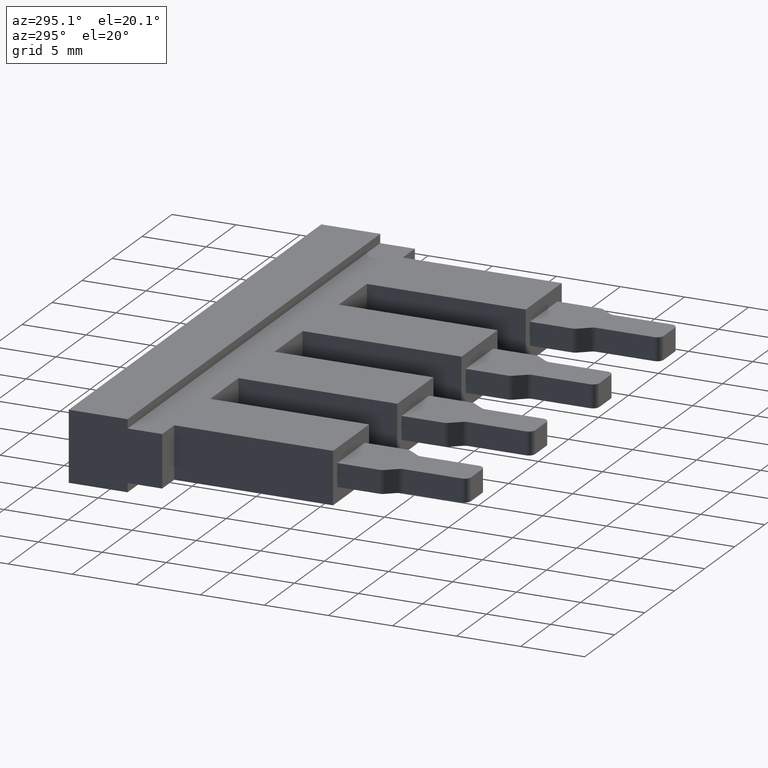
[diagram: clean part render]
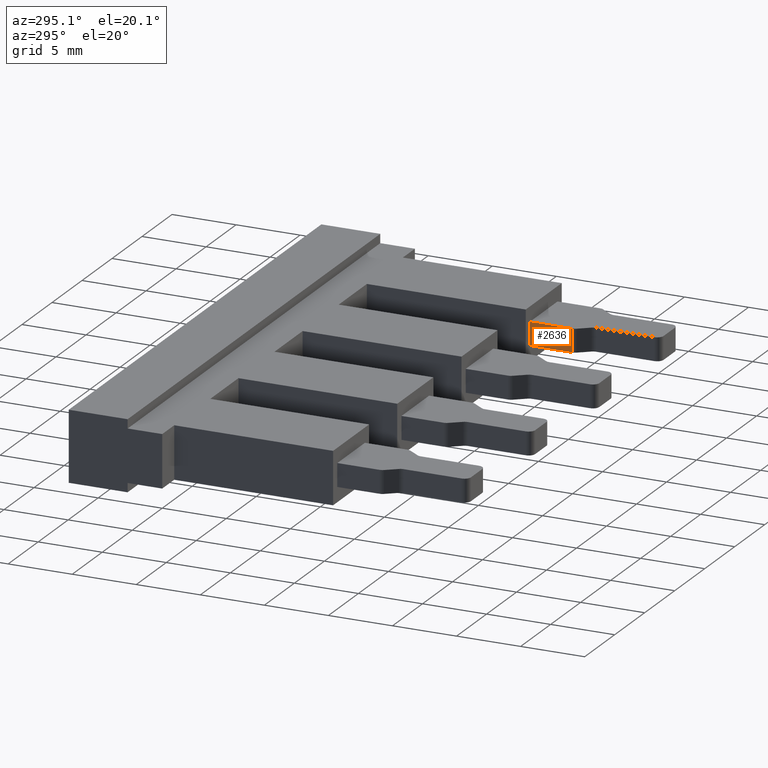
[diagram: same view with one face highlighted and labeled with its STEP entity id]
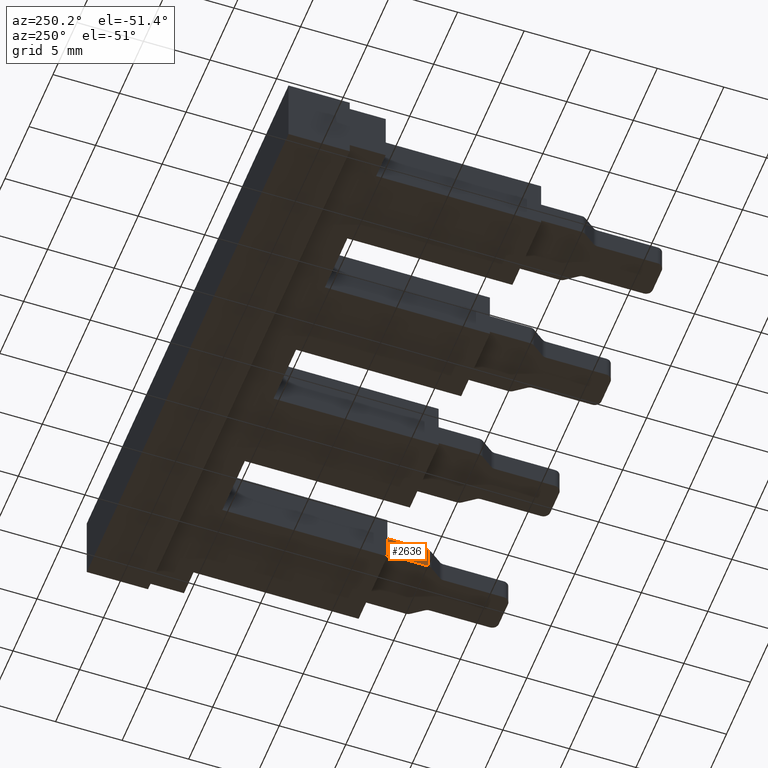
[diagram: same view with one face highlighted and labeled with its STEP entity id]
A machine part, auxiliary view. The second image highlights one B-rep face of the part: STEP entity #2636.
A second angle (auxiliary view) of the same face is appended — the face is thin or edge-on in the first view.
In plain terms, the highlighted planar face has unit normal (1, -0, 0).
Its self-contained STEP definition (entity closure, byte-faithful):
#88 = CARTESIAN_POINT ( 'NONE',  ( 34.79999999999999700, -15.70000000000010600, 1.149999999999977500 ) ) ;
#103 = DIRECTION ( 'NONE',  ( 0.0000000000000000000, 0.0000000000000000000, -1.000000000000000000 ) ) ;
#104 = LINE ( 'NONE', #88, #2272 ) ;
#233 = CARTESIAN_POINT ( 'NONE',  ( 34.79999999999999700, -2.699999999999988600, 2.949999999999999700 ) ) ;
#253 = LINE ( 'NONE', #233, #2233 ) ;
#261 = DIRECTION ( 'NONE',  ( 0.0000000000000000000, 1.000000000000000000, 0.0000000000000000000 ) ) ;
#265 = LINE ( 'NONE', #268, #2252 ) ;
#268 = CARTESIAN_POINT ( 'NONE',  ( 34.79999999999999700, -12.39999999999999900, -0.8100249999999997700 ) ) ;
#270 = CARTESIAN_POINT ( 'NONE',  ( 34.79999999999999700, -2.699999999999988600, 1.149999999999979500 ) ) ;
#275 = DIRECTION ( 'NONE',  ( 0.0000000000000000000, 1.000000000000000000, 0.0000000000000000000 ) ) ;
#282 = LINE ( 'NONE', #270, #2328 ) ;
#300 = DIRECTION ( 'NONE',  ( 0.0000000000000000000, 0.0000000000000000000, 1.000000000000000000 ) ) ;
#338 = PLANE ( 'NONE',  #2296 ) ;
#340 = CARTESIAN_POINT ( 'NONE',  ( 34.79999999999999700, -2.699999999999988600, 1.149999999999977500 ) ) ;
#346 = DIRECTION ( 'NONE',  ( 1.000000000000000000, -0.0000000000000000000, 0.0000000000000000000 ) ) ;
#350 = FACE_OUTER_BOUND ( 'NONE', #1541, .T. ) ;
#368 = DIRECTION ( 'NONE',  ( 0.0000000000000000000, 0.0000000000000000000, -1.000000000000000000 ) ) ;
#1146 = CARTESIAN_POINT ( 'NONE',  ( 34.79999999999999700, -15.70000000000010600, 1.149999999999979500 ) ) ;
#1159 = CARTESIAN_POINT ( 'NONE',  ( 34.79999999999999700, -12.39999999999999900, 1.149999999999979500 ) ) ;
#1172 = CARTESIAN_POINT ( 'NONE',  ( 34.79999999999999700, -12.39999999999999900, 2.949999999999999700 ) ) ;
#1179 = CARTESIAN_POINT ( 'NONE',  ( 34.79999999999999700, -15.70000000000010600, 2.949999999999999700 ) ) ;
#1431 = VERTEX_POINT ( 'NONE', #1179 ) ;
#1436 = VERTEX_POINT ( 'NONE', #1146 ) ;
#1438 = VERTEX_POINT ( 'NONE', #1159 ) ;
#1471 = VERTEX_POINT ( 'NONE', #1172 ) ;
#1541 = EDGE_LOOP ( 'NONE', ( #1844, #1863, #1832, #1822 ) ) ;
#1822 = ORIENTED_EDGE ( 'NONE', *, *, #2614, .F. ) ;
#1832 = ORIENTED_EDGE ( 'NONE', *, *, #2607, .T. ) ;
#1844 = ORIENTED_EDGE ( 'NONE', *, *, #2619, .F. ) ;
#1863 = ORIENTED_EDGE ( 'NONE', *, *, #2566, .F. ) ;
#2233 = VECTOR ( 'NONE', #261, 1000.000000000000000 ) ;
#2252 = VECTOR ( 'NONE', #300, 1000.000000000000000 ) ;
#2272 = VECTOR ( 'NONE', #103, 1000.000000000000000 ) ;
#2296 = AXIS2_PLACEMENT_3D ( 'NONE', #340, #346, #368 ) ;
#2328 = VECTOR ( 'NONE', #275, 1000.000000000000000 ) ;
#2566 = EDGE_CURVE ( 'NONE', #1431, #1436, #104, .T. ) ;
#2607 = EDGE_CURVE ( 'NONE', #1431, #1471, #253, .T. ) ;
#2614 = EDGE_CURVE ( 'NONE', #1438, #1471, #265, .T. ) ;
#2619 = EDGE_CURVE ( 'NONE', #1436, #1438, #282, .T. ) ;
#2636 = ADVANCED_FACE ( 'NONE', ( #350 ), #338, .F. ) ;